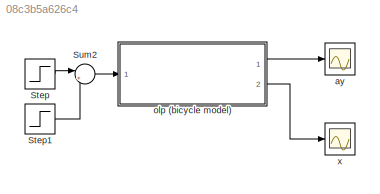
MODEL slx_08c3b5a626c4
KIND model
CONFIG AbsTol = auto
CONFIG EnableMultiTasking = off
CONFIG FixedStep = 0.01
CONFIG MaxStep = auto
CONFIG MinStep = auto
CONFIG RelTol = 1e-3
CONFIG SampleTimeConstraint = Unconstrained
CONFIG Solver = ode3
CONFIG SolverName = ode3
CONFIG StartTime = 0.0
CONFIG StopTime = 10.0
BLOCK [Step] Step
  After = 10*pi/180
  SampleTime = 0
BLOCK [Step] Step1
  After = 10*pi/180
  SampleTime = 0
  Time = 3
BLOCK [Sum] Sum2
  IconShape = round
  InputSameDT = off
  Inputs = |+-
  OutDataTypeStr = Inherit: Inherit via internal rule
  Ports = [2, 1]
  SaturateOnIntegerOverflow = off
BLOCK [Scope] ay
  Floating = off
  NumInputPorts = 1
  Ports = [1]
  ScopeSpecificationString = Simulink.scopes.TimeScopeBlockCfg('CurrentConfiguration', extmgr.ConfigurationSet(extmgr.Configuration('Core','General UI',true),extmgr.Configuration('Core','Source UI',true),extmgr.Configuration('Sources','WiredSimulink',true,'DataLoggingVariableName','ScopeData2'),extmgr.Configuration('Visuals','Time Domain',true,'SerializedDisplays',{struct('MinYLimReal','-0.61688','MaxYLimReal','0.61395','YLab...<+1417ch>
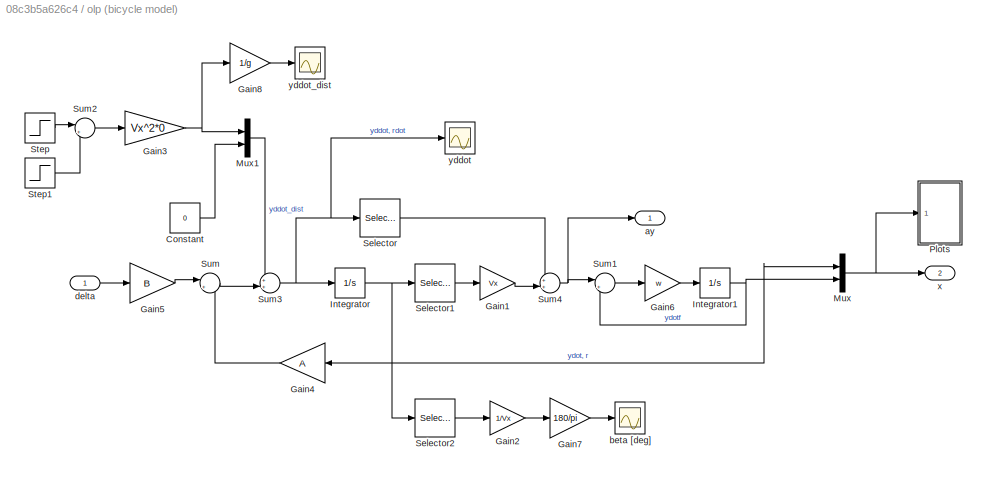
BLOCK [SubSystem] olp (bicycle model)
  Ports = [1, 2]
  RequestExecContextInheritance = off
BLOCK [Constant] olp (bicycle model)/Constant
  Value = 0
BLOCK [Gain] olp (bicycle model)/Gain1
  Gain = Vx
  OutDataTypeStr = Inherit: Inherit via internal rule
  ParamDataTypeStr = Inherit: Inherit via internal rule
  SaturateOnIntegerOverflow = off
BLOCK [Gain] olp (bicycle model)/Gain2
  Gain = 1/Vx
  OutDataTypeStr = Inherit: Inherit via internal rule
  ParamDataTypeStr = Inherit: Inherit via internal rule
  SaturateOnIntegerOverflow = off
BLOCK [Gain] olp (bicycle model)/Gain3
  Gain = Vx^2*0
  Multiplication = Matrix(K*u)
  OutDataTypeStr = Inherit: Inherit via internal rule
  ParamDataTypeStr = Inherit: Inherit via internal rule
  SaturateOnIntegerOverflow = off
BLOCK [Gain] olp (bicycle model)/Gain4
  Gain = A
  Multiplication = Matrix(K*u)
  OutDataTypeStr = Inherit: Inherit via internal rule
  ParamDataTypeStr = Inherit: Inherit via internal rule
  SaturateOnIntegerOverflow = off
BLOCK [Gain] olp (bicycle model)/Gain5
  Gain = B
  Multiplication = Matrix(K*u)
  OutDataTypeStr = Inherit: Inherit via internal rule
  ParamDataTypeStr = Inherit: Inherit via internal rule
  SaturateOnIntegerOverflow = off
BLOCK [Gain] olp (bicycle model)/Gain6
  Gain = w
  OutDataTypeStr = Inherit: Inherit via internal rule
  ParamDataTypeStr = Inherit: Inherit via internal rule
  SaturateOnIntegerOverflow = off
BLOCK [Gain] olp (bicycle model)/Gain7
  Gain = 180/pi
  OutDataTypeStr = Inherit: Inherit via internal rule
  ParamDataTypeStr = Inherit: Inherit via internal rule
  SaturateOnIntegerOverflow = off
BLOCK [Gain] olp (bicycle model)/Gain8
  Gain = 1/g
  OutDataTypeStr = Inherit: Inherit via internal rule
  ParamDataTypeStr = Inherit: Inherit via internal rule
  SaturateOnIntegerOverflow = off
BLOCK [Integrator] olp (bicycle model)/Integrator
  InitialCondition = [0;0]
  Ports = [1, 1]
BLOCK [Integrator] olp (bicycle model)/Integrator1
  Ports = [1, 1]
BLOCK [Mux] olp (bicycle model)/Mux
  DisplayOption = bar
  Inputs = 2
  Ports = [2, 1]
BLOCK [Mux] olp (bicycle model)/Mux1
  DisplayOption = bar
  Inputs = 2
  Ports = [2, 1]
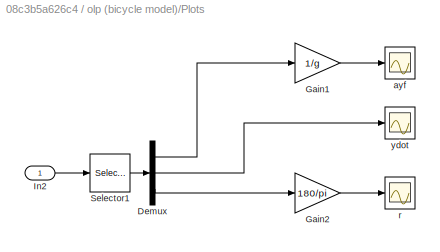
BLOCK [SubSystem] olp (bicycle model)/Plots
  Ports = [1]
  RequestExecContextInheritance = off
BLOCK [Demux] olp (bicycle model)/Plots/Demux
  DisplayOption = bar
  Outputs = 3
  Ports = [1, 3]
BLOCK [Gain] olp (bicycle model)/Plots/Gain1
  Gain = 1/g
  OutDataTypeStr = Inherit: Inherit via internal rule
  ParamDataTypeStr = Inherit: Inherit via internal rule
  SaturateOnIntegerOverflow = off
BLOCK [Gain] olp (bicycle model)/Plots/Gain2
  Gain = 180/pi
  OutDataTypeStr = Inherit: Inherit via internal rule
  ParamDataTypeStr = Inherit: Inherit via internal rule
  SaturateOnIntegerOverflow = off
BLOCK [Inport] olp (bicycle model)/Plots/In2
  IconDisplay = Port number
BLOCK [Selector] olp (bicycle model)/Plots/Selector1
  IndexOptions = Index vector (dialog)
  Indices = [3 1 2]
  InputPortWidth = 3
  OutputSizes = 1
  Ports = [1, 1]
BLOCK [Scope] olp (bicycle model)/Plots/ayf
  Floating = off
  NumInputPorts = 1
  Ports = [1]
  ScopeSpecificationString = Simulink.scopes.TimeScopeBlockCfg('CurrentConfiguration', extmgr.ConfigurationSet(extmgr.Configuration('Core','General UI',true),extmgr.Configuration('Core','Source UI',true),extmgr.Configuration('Sources','WiredSimulink',true,'DataLoggingVariableName','ScopeData2'),extmgr.Configuration('Visuals','Time Domain',true,'SerializedDisplays',{struct('MinYLimReal','-0.00492','MaxYLimReal','0.04424','YLab...<+1433ch>
BLOCK [Scope] olp (bicycle model)/Plots/r
  Floating = off
  NumInputPorts = 1
  Ports = [1]
  ScopeSpecificationString = Simulink.scopes.TimeScopeBlockCfg('CurrentConfiguration', extmgr.ConfigurationSet(extmgr.Configuration('Core','General UI',true),extmgr.Configuration('Core','Source UI',true),extmgr.Configuration('Sources','WiredSimulink',true,'DataLoggingVariableName','ScopeData4'),extmgr.Configuration('Visuals','Time Domain',true,'SerializedDisplays',{struct('MinYLimReal','-2.57831','MaxYLimReal','23.20479','YLa...<+1411ch>
BLOCK [Scope] olp (bicycle model)/Plots/ydot
  Floating = off
  NumInputPorts = 1
  Ports = [1]
  ScopeSpecificationString = Simulink.scopes.TimeScopeBlockCfg('CurrentConfiguration', extmgr.ConfigurationSet(extmgr.Configuration('Core','General UI',true),extmgr.Configuration('Core','Source UI',true),extmgr.Configuration('Sources','WiredSimulink',true,'DataLoggingVariableName','ScopeData3'),extmgr.Configuration('Visuals','Time Domain',true,'SerializedDisplays',{struct('MinYLimReal','-0.0499','MaxYLimReal','0.44913','YLabe...<+1405ch>
BLOCK [Selector] olp (bicycle model)/Selector
  IndexOptions = Index vector (dialog)
  Indices = 1
  InputPortWidth = 2
  OutputSizes = 1
  Ports = [1, 1]
BLOCK [Selector] olp (bicycle model)/Selector1
  IndexOptions = Index vector (dialog)
  Indices = 2
  InputPortWidth = 2
  OutputSizes = 1
  Ports = [1, 1]
BLOCK [Selector] olp (bicycle model)/Selector2
  IndexOptions = Index vector (dialog)
  Indices = 1
  InputPortWidth = 2
  OutputSizes = 1
  Ports = [1, 1]
BLOCK [Step] olp (bicycle model)/Step
  After = rho
  SampleTime = 0
BLOCK [Step] olp (bicycle model)/Step1
  After = rho
  SampleTime = 0
  Time = 10
BLOCK [Sum] olp (bicycle model)/Sum
  IconShape = round
  InputSameDT = off
  Inputs = |++
  OutDataTypeStr = Inherit: Inherit via internal rule
  Ports = [2, 1]
  SaturateOnIntegerOverflow = off
BLOCK [Sum] olp (bicycle model)/Sum1
  IconShape = round
  InputSameDT = off
  Inputs = |+-
  OutDataTypeStr = Inherit: Inherit via internal rule
  Ports = [2, 1]
  SaturateOnIntegerOverflow = off
BLOCK [Sum] olp (bicycle model)/Sum2
  IconShape = round
  InputSameDT = off
  Inputs = |+-
  OutDataTypeStr = Inherit: Inherit via internal rule
  Ports = [2, 1]
  SaturateOnIntegerOverflow = off
BLOCK [Sum] olp (bicycle model)/Sum3
  IconShape = round
  InputSameDT = off
  Inputs = ++|
  OutDataTypeStr = Inherit: Inherit via internal rule
  Ports = [2, 1]
  SaturateOnIntegerOverflow = off
BLOCK [Sum] olp (bicycle model)/Sum4
  IconShape = round
  InputSameDT = off
  Inputs = ++|
  OutDataTypeStr = Inherit: Inherit via internal rule
  Ports = [2, 1]
  SaturateOnIntegerOverflow = off
BLOCK [Outport] olp (bicycle model)/ay
  IconDisplay = Port number
BLOCK [Scope] olp (bicycle model)/beta [deg]
  Floating = off
  NumInputPorts = 1
  Ports = [1]
  ScopeSpecificationString = Simulink.scopes.TimeScopeBlockCfg('CurrentConfiguration', extmgr.ConfigurationSet(extmgr.Configuration('Core','General UI',true),extmgr.Configuration('Core','Source UI',true),extmgr.Configuration('Sources','WiredSimulink',true,'DataLoggingVariableName','ScopeData1'),extmgr.Configuration('Visuals','Time Domain',true,'SerializedDisplays',{struct('MinYLimReal','-0.39711','MaxYLimReal','3.57403','YLab...<+1393ch>
BLOCK [Inport] olp (bicycle model)/delta
  IconDisplay = Port number
BLOCK [Outport] olp (bicycle model)/x
  IconDisplay = Port number
  Port = 2
BLOCK [Scope] olp (bicycle model)/yddot
  Floating = off
  NumInputPorts = 1
  Ports = [1]
  ScopeSpecificationString = Simulink.scopes.TimeScopeBlockCfg('CurrentConfiguration', extmgr.ConfigurationSet(extmgr.Configuration('Core','General UI',true),extmgr.Configuration('Core','Source UI',true),extmgr.Configuration('Sources','WiredSimulink',true,'DataLoggingVariableName','ScopeData1'),extmgr.Configuration('Visuals','Time Domain',true,'SerializedDisplays',{struct('MinYLimReal','-0.61688','MaxYLimReal','0.61395','YLab...<+1417ch>
BLOCK [Scope] olp (bicycle model)/yddot_dist
  Floating = off
  NumInputPorts = 1
  Ports = [1]
  ScopeSpecificationString = Simulink.scopes.TimeScopeBlockCfg('CurrentConfiguration', extmgr.ConfigurationSet(extmgr.Configuration('Core','General UI',true),extmgr.Configuration('Core','Source UI',true),extmgr.Configuration('Sources','WiredSimulink',true,'DataLoggingVariableName','ScopeData4'),extmgr.Configuration('Visuals','Time Domain',true,'SerializedDisplays',{struct('MinYLimReal','-1.00000','MaxYLimReal','1.00000','YLab...<+1393ch>
BLOCK [Scope] x
  Floating = off
  NumInputPorts = 1
  Ports = [1]
  ScopeSpecificationString = Simulink.scopes.TimeScopeBlockCfg('CurrentConfiguration', extmgr.ConfigurationSet(extmgr.Configuration('Core','General UI',true),extmgr.Configuration('Core','Source UI',true),extmgr.Configuration('Sources','WiredSimulink',true,'DataLoggingVariableName','ScopeData3'),extmgr.Configuration('Visuals','Time Domain',true,'SerializedDisplays',{struct('MinYLimReal','-0.61688','MaxYLimReal','0.61395','YLab...<+1417ch>
LINE Step1:1 -> Sum2:2
LINE Step:1 -> Sum2:1
LINE Sum2:1 -> olp (bicycle model):1
LINE olp (bicycle model)/Constant:1 -> olp (bicycle model)/Mux1:2
LINE olp (bicycle model)/Gain1:1 -> olp (bicycle model)/Sum4:2
LINE olp (bicycle model)/Gain2:1 -> olp (bicycle model)/Gain7:1
NET olp (bicycle model)/Gain3:1 -> olp (bicycle model)/Gain8:1, olp (bicycle model)/Mux1:1
LINE olp (bicycle model)/Gain4:1 -> olp (bicycle model)/Sum:2
LINE olp (bicycle model)/Gain5:1 -> olp (bicycle model)/Sum:1
LINE olp (bicycle model)/Gain6:1 -> olp (bicycle model)/Integrator1:1
LINE olp (bicycle model)/Gain7:1 -> olp (bicycle model)/beta [deg]:1
LINE olp (bicycle model)/Gain8:1 -> olp (bicycle model)/yddot_dist:1
NET olp (bicycle model)/Integrator1:1 -> olp (bicycle model)/Mux:2, olp (bicycle model)/Sum1:2
NET olp (bicycle model)/Integrator:1 -> olp (bicycle model)/Gain4:1, olp (bicycle model)/Mux:1, olp (bicycle model)/Selector1:1, olp (bicycle model)/Selector2:1
LINE olp (bicycle model)/Mux1:1 -> olp (bicycle model)/Sum3:1
NET olp (bicycle model)/Mux:1 -> olp (bicycle model)/Plots:1, olp (bicycle model)/x:1
LINE olp (bicycle model)/Plots/Demux:1 -> olp (bicycle model)/Plots/Gain1:1
LINE olp (bicycle model)/Plots/Demux:2 -> olp (bicycle model)/Plots/ydot:1
LINE olp (bicycle model)/Plots/Demux:3 -> olp (bicycle model)/Plots/Gain2:1
LINE olp (bicycle model)/Plots/Gain1:1 -> olp (bicycle model)/Plots/ayf:1
LINE olp (bicycle model)/Plots/Gain2:1 -> olp (bicycle model)/Plots/r:1
LINE olp (bicycle model)/Plots/In2:1 -> olp (bicycle model)/Plots/Selector1:1
LINE olp (bicycle model)/Plots/Selector1:1 -> olp (bicycle model)/Plots/Demux:1
LINE olp (bicycle model)/Selector1:1 -> olp (bicycle model)/Gain1:1
LINE olp (bicycle model)/Selector2:1 -> olp (bicycle model)/Gain2:1
LINE olp (bicycle model)/Selector:1 -> olp (bicycle model)/Sum4:1
LINE olp (bicycle model)/Step1:1 -> olp (bicycle model)/Sum2:2
LINE olp (bicycle model)/Step:1 -> olp (bicycle model)/Sum2:1
LINE olp (bicycle model)/Sum1:1 -> olp (bicycle model)/Gain6:1
LINE olp (bicycle model)/Sum2:1 -> olp (bicycle model)/Gain3:1
NET olp (bicycle model)/Sum3:1 -> olp (bicycle model)/Integrator:1, olp (bicycle model)/Selector:1, olp (bicycle model)/yddot:1
NET olp (bicycle model)/Sum4:1 -> olp (bicycle model)/Sum1:1, olp (bicycle model)/ay:1
LINE olp (bicycle model)/Sum:1 -> olp (bicycle model)/Sum3:2
LINE olp (bicycle model)/delta:1 -> olp (bicycle model)/Gain5:1
LINE olp (bicycle model):1 -> ay:1
LINE olp (bicycle model):2 -> x:1
note: NET lines group one-source signal fan-out (src -> all destinations, sorted); 1:1 wires keep LINE
